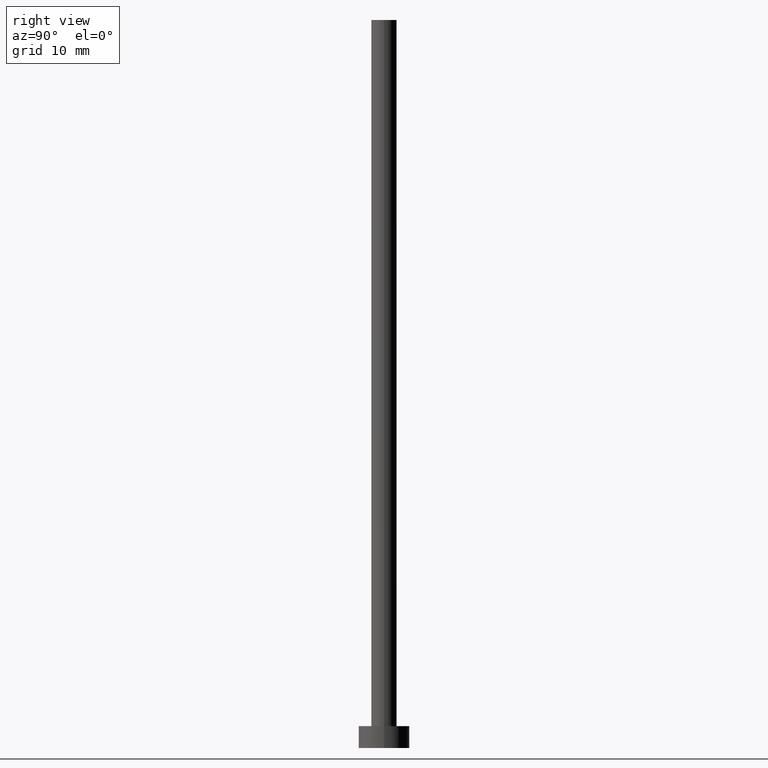
[diagram: clean part render]
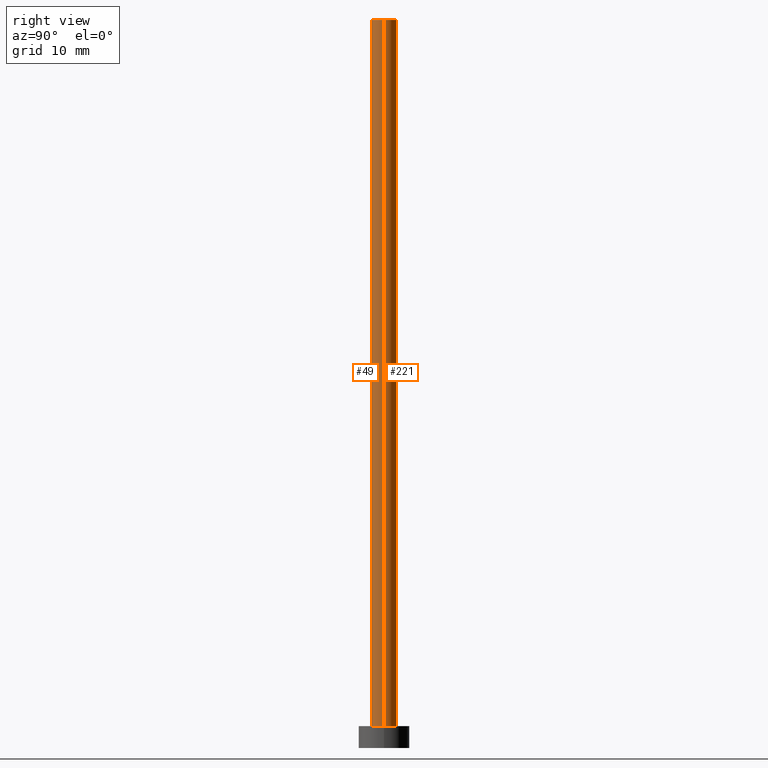
[diagram: same view with one multi-face feature highlighted, each face labeled with its STEP entity id]
A machine part, right view. The highlighted faces form ONE feature: a constant-radius fillet chain: 2 tangent blend faces with common blend radius 1.75 mm. The faces share edges in the B-rep.
Their STEP definitions:
[1] entity #49 (Cylinder):
#2 = AXIS2_PLACEMENT_3D ( 'NONE', #250, #79, #24 ) ;
#11 = EDGE_CURVE ( 'NONE', #30, #169, #98, .T. ) ;
#18 = AXIS2_PLACEMENT_3D ( 'NONE', #187, #195, #186 ) ;
#23 = ORIENTED_EDGE ( 'NONE', *, *, #11, .T. ) ;
#24 = DIRECTION ( 'NONE',  ( -1.000000000000000000, 0.000000000000000000, 0.000000000000000000 ) ) ;
#30 = VERTEX_POINT ( 'NONE', #137 ) ;
#37 = AXIS2_PLACEMENT_3D ( 'NONE', #237, #240, #188 ) ;
#46 = CARTESIAN_POINT ( 'NONE',  ( -1.750000000000000000, 0.000000000000000000, 3.000000000000000000 ) ) ;
#47 = VECTOR ( 'NONE', #166, 1000.000000000000000 ) ;
#49 = ADVANCED_FACE ( 'NONE', ( #216 ), #220, .T. ) ;
#51 = CARTESIAN_POINT ( 'NONE',  ( 1.750000000000000000, 2.143131898507867804E-16, 3.000000000000000000 ) ) ;
#53 = EDGE_LOOP ( 'NONE', ( #102, #182, #23, #75 ) ) ;
#56 = LINE ( 'NONE', #116, #153 ) ;
#67 = EDGE_CURVE ( 'NONE', #197, #230, #56, .T. ) ;
#75 = ORIENTED_EDGE ( 'NONE', *, *, #198, .T. ) ;
#79 = DIRECTION ( 'NONE',  ( -0.000000000000000000, -0.000000000000000000, -1.000000000000000000 ) ) ;
#98 = LINE ( 'NONE', #132, #47 ) ;
#99 = CARTESIAN_POINT ( 'NONE',  ( 1.750000000000000000, 2.143131898507867804E-16, 100.0000000000000000 ) ) ;
#100 = EDGE_CURVE ( 'NONE', #30, #197, #143, .T. ) ;
#102 = ORIENTED_EDGE ( 'NONE', *, *, #67, .F. ) ;
#110 = DIRECTION ( 'NONE',  ( -0.000000000000000000, -0.000000000000000000, -1.000000000000000000 ) ) ;
#116 = CARTESIAN_POINT ( 'NONE',  ( 1.750000000000000000, 2.143131898507867804E-16, 100.0000000000000000 ) ) ;
#132 = CARTESIAN_POINT ( 'NONE',  ( -1.750000000000000000, 0.000000000000000000, 100.0000000000000000 ) ) ;
#137 = CARTESIAN_POINT ( 'NONE',  ( -1.750000000000000000, 0.000000000000000000, 100.0000000000000000 ) ) ;
#143 = CIRCLE ( 'NONE', #18, 1.750000000000000000 ) ;
#153 = VECTOR ( 'NONE', #110, 1000.000000000000000 ) ;
#166 = DIRECTION ( 'NONE',  ( -0.000000000000000000, -0.000000000000000000, -1.000000000000000000 ) ) ;
#169 = VERTEX_POINT ( 'NONE', #46 ) ;
#182 = ORIENTED_EDGE ( 'NONE', *, *, #100, .F. ) ;
#186 = DIRECTION ( 'NONE',  ( 1.000000000000000000, 0.000000000000000000, 0.000000000000000000 ) ) ;
#187 = CARTESIAN_POINT ( 'NONE',  ( 0.000000000000000000, 0.000000000000000000, 100.0000000000000000 ) ) ;
#188 = DIRECTION ( 'NONE',  ( 1.000000000000000000, 0.000000000000000000, 0.000000000000000000 ) ) ;
#195 = DIRECTION ( 'NONE',  ( 0.000000000000000000, 0.000000000000000000, 1.000000000000000000 ) ) ;
#197 = VERTEX_POINT ( 'NONE', #99 ) ;
#198 = EDGE_CURVE ( 'NONE', #169, #230, #206, .T. ) ;
#206 = CIRCLE ( 'NONE', #37, 1.750000000000000000 ) ;
#216 = FACE_OUTER_BOUND ( 'NONE', #53, .T. ) ;
#220 = CYLINDRICAL_SURFACE ( 'NONE', #2, 1.750000000000000000 ) ;
#230 = VERTEX_POINT ( 'NONE', #51 ) ;
#237 = CARTESIAN_POINT ( 'NONE',  ( 0.000000000000000000, 0.000000000000000000, 3.000000000000000000 ) ) ;
#240 = DIRECTION ( 'NONE',  ( 0.000000000000000000, 0.000000000000000000, 1.000000000000000000 ) ) ;
#250 = CARTESIAN_POINT ( 'NONE',  ( 0.000000000000000000, 0.000000000000000000, 100.0000000000000000 ) ) ;
[2] entity #221 (Cylinder):
#11 = EDGE_CURVE ( 'NONE', #30, #169, #98, .T. ) ;
#13 = DIRECTION ( 'NONE',  ( -0.000000000000000000, -0.000000000000000000, -1.000000000000000000 ) ) ;
#16 = EDGE_LOOP ( 'NONE', ( #94, #136, #194, #80 ) ) ;
#21 = EDGE_CURVE ( 'NONE', #230, #169, #223, .T. ) ;
#30 = VERTEX_POINT ( 'NONE', #137 ) ;
#40 = AXIS2_PLACEMENT_3D ( 'NONE', #235, #65, #140 ) ;
#46 = CARTESIAN_POINT ( 'NONE',  ( -1.750000000000000000, 0.000000000000000000, 3.000000000000000000 ) ) ;
#47 = VECTOR ( 'NONE', #166, 1000.000000000000000 ) ;
#51 = CARTESIAN_POINT ( 'NONE',  ( 1.750000000000000000, 2.143131898507867804E-16, 3.000000000000000000 ) ) ;
#56 = LINE ( 'NONE', #116, #153 ) ;
#65 = DIRECTION ( 'NONE',  ( 0.000000000000000000, 0.000000000000000000, 1.000000000000000000 ) ) ;
#67 = EDGE_CURVE ( 'NONE', #197, #230, #56, .T. ) ;
#80 = ORIENTED_EDGE ( 'NONE', *, *, #11, .F. ) ;
#94 = ORIENTED_EDGE ( 'NONE', *, *, #176, .F. ) ;
#98 = LINE ( 'NONE', #132, #47 ) ;
#99 = CARTESIAN_POINT ( 'NONE',  ( 1.750000000000000000, 2.143131898507867804E-16, 100.0000000000000000 ) ) ;
#101 = DIRECTION ( 'NONE',  ( 0.000000000000000000, 0.000000000000000000, 1.000000000000000000 ) ) ;
#104 = DIRECTION ( 'NONE',  ( 1.000000000000000000, 0.000000000000000000, 0.000000000000000000 ) ) ;
#110 = DIRECTION ( 'NONE',  ( -0.000000000000000000, -0.000000000000000000, -1.000000000000000000 ) ) ;
#116 = CARTESIAN_POINT ( 'NONE',  ( 1.750000000000000000, 2.143131898507867804E-16, 100.0000000000000000 ) ) ;
#123 = CARTESIAN_POINT ( 'NONE',  ( 0.000000000000000000, 0.000000000000000000, 100.0000000000000000 ) ) ;
#132 = CARTESIAN_POINT ( 'NONE',  ( -1.750000000000000000, 0.000000000000000000, 100.0000000000000000 ) ) ;
#136 = ORIENTED_EDGE ( 'NONE', *, *, #67, .T. ) ;
#137 = CARTESIAN_POINT ( 'NONE',  ( -1.750000000000000000, 0.000000000000000000, 100.0000000000000000 ) ) ;
#140 = DIRECTION ( 'NONE',  ( 1.000000000000000000, 0.000000000000000000, 0.000000000000000000 ) ) ;
#148 = CIRCLE ( 'NONE', #245, 1.750000000000000000 ) ;
#153 = VECTOR ( 'NONE', #110, 1000.000000000000000 ) ;
#157 = FACE_OUTER_BOUND ( 'NONE', #16, .T. ) ;
#166 = DIRECTION ( 'NONE',  ( -0.000000000000000000, -0.000000000000000000, -1.000000000000000000 ) ) ;
#169 = VERTEX_POINT ( 'NONE', #46 ) ;
#173 = CYLINDRICAL_SURFACE ( 'NONE', #212, 1.750000000000000000 ) ;
#176 = EDGE_CURVE ( 'NONE', #197, #30, #148, .T. ) ;
#178 = CARTESIAN_POINT ( 'NONE',  ( 0.000000000000000000, 0.000000000000000000, 100.0000000000000000 ) ) ;
#194 = ORIENTED_EDGE ( 'NONE', *, *, #21, .T. ) ;
#197 = VERTEX_POINT ( 'NONE', #99 ) ;
#212 = AXIS2_PLACEMENT_3D ( 'NONE', #178, #13, #228 ) ;
#221 = ADVANCED_FACE ( 'NONE', ( #157 ), #173, .T. ) ;
#223 = CIRCLE ( 'NONE', #40, 1.750000000000000000 ) ;
#228 = DIRECTION ( 'NONE',  ( -1.000000000000000000, 0.000000000000000000, 0.000000000000000000 ) ) ;
#230 = VERTEX_POINT ( 'NONE', #51 ) ;
#235 = CARTESIAN_POINT ( 'NONE',  ( 0.000000000000000000, 0.000000000000000000, 3.000000000000000000 ) ) ;
#245 = AXIS2_PLACEMENT_3D ( 'NONE', #123, #101, #104 ) ;